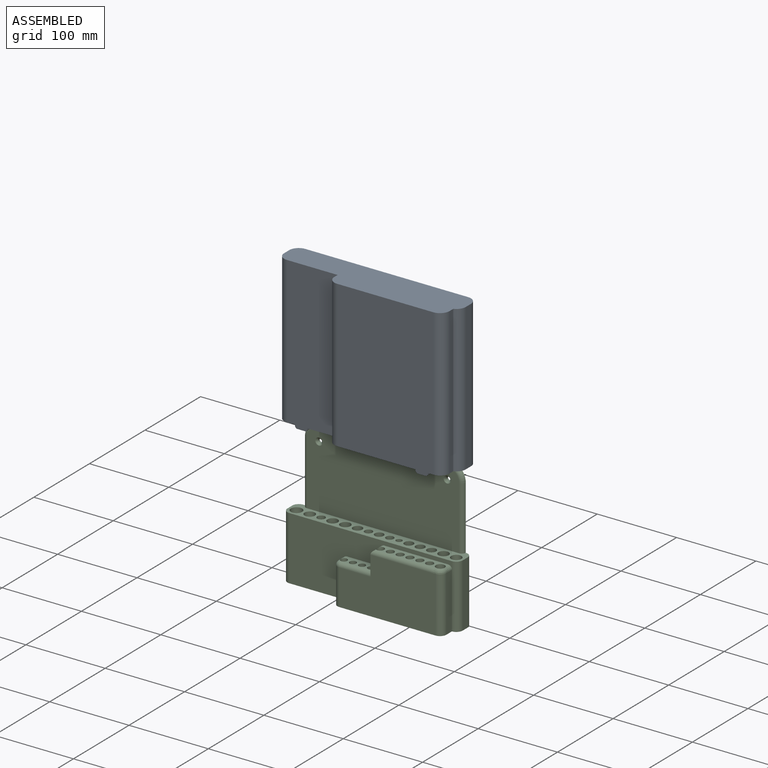
[diagram: assembled view]
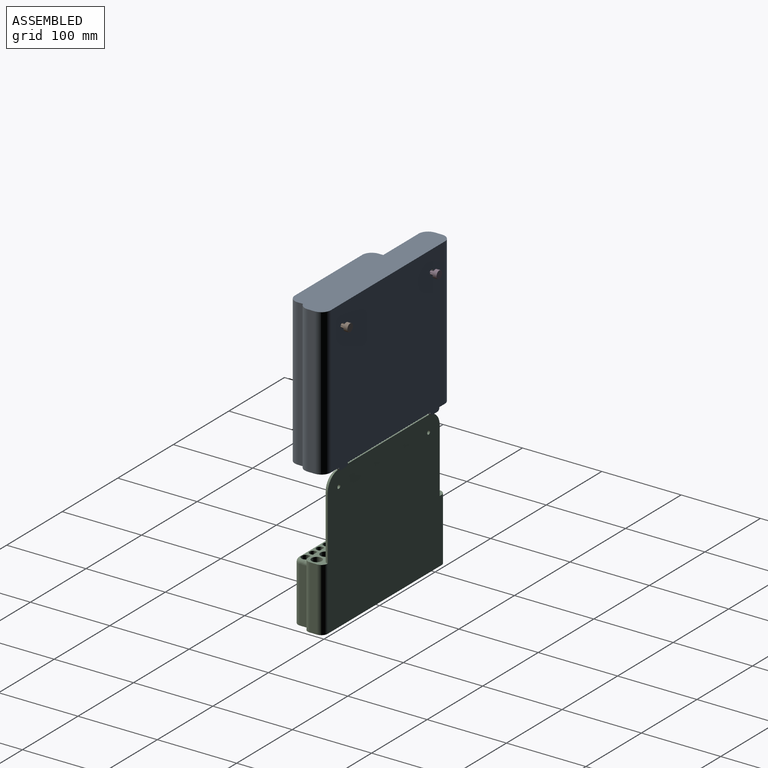
[diagram: assembled view, second angle]
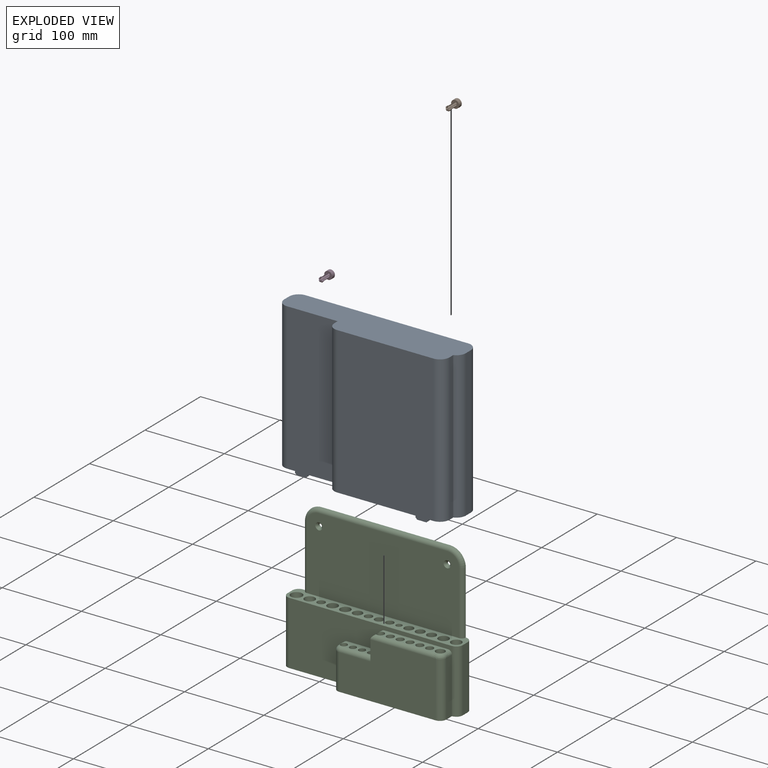
[diagram: exploded view]
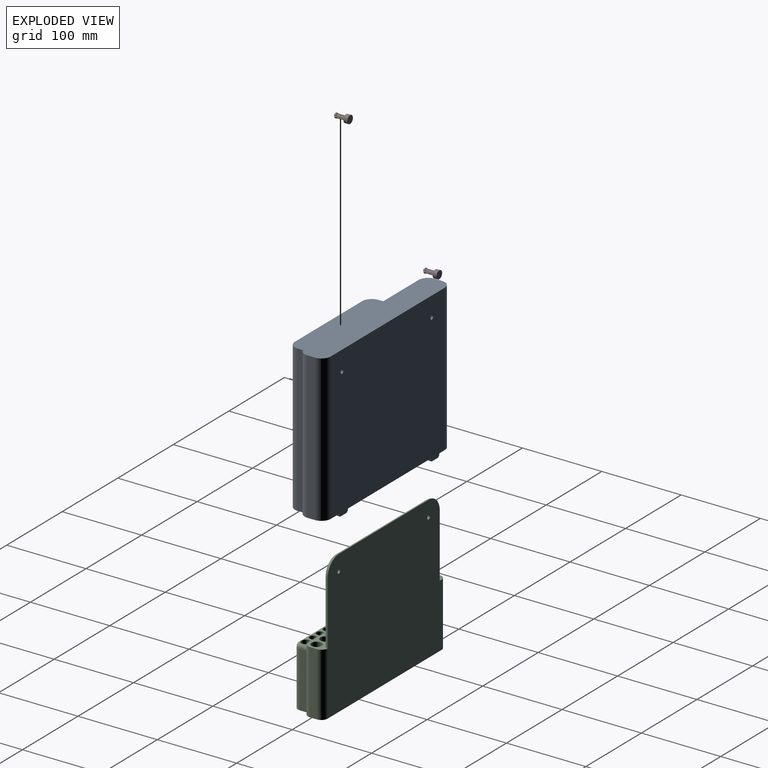
[diagram: exploded view, second angle]
ASSEMBLY  parts=4 mates=3
PART A: 138 faces, bbox 230.8x53x190.8 mm
  f0: plane 3x2mm, normal (-1,0,0), area 6mm2, adj f6,f16,f29,f127
  f1: plane 3x2mm, normal (-1,0,0), area 6mm2, adj f4,f9,f25,f131
  f2: plane 3x2mm, normal (1,0,0), area 6mm2, adj f6,f13,f21,f130
  f3: plane 148.87x3mm, normal (0,0,-1), area 446.6mm2, adj f9,f25,f113,f115
  f4: plane 33x22.02mm, normal (0,0,-1), area 186.1mm2, adj f1,f9,f10,f11,f12,f13,f21,f25
  f5: plane 51x26.82mm, normal (0,0,-1), area 256.3mm2, adj f7,f8,f9,f16,f17,f18,f19,f22
  f6: plane 148.87x21mm, normal (0,0,-1), area 487.1mm2, adj f0,f2,f13,f14,f15,f16,f21,f29
  f7: plane 185x9mm, normal (1,0,0), area 1665mm2, adj f5,f8,f19,f20
  f8: cylinder r=12mm len=185mm, axis (0,0,-1), area 3487.2mm2, adj f5,f7,f9,f20
  f9: plane 205x189mm, normal (0,1,0), area 38002.9mm2, adj f1,f3,f4,f5,f8,f10,f20,f107
  f10: cylinder r=12mm len=185mm, axis (0,0,-1), area 3487.2mm2, adj f4,f9,f11,f20
  f11: plane 185x9mm, normal (-1,0,0), area 1665mm2, adj f4,f10,f12,f20
  f12: cylinder r=12mm len=185mm, axis (0,0,-1), area 3487.2mm2, adj f4,f11,f13,f20
  f13: plane 189x63.75mm, normal (0,-1,0), area 11852.3mm2, adj f2,f4,f6,f12,f14,f20,f111,f112
  f14: plane 185x6mm, normal (-1,0,0), area 1110mm2, adj f6,f13,f15,f20
  f15: cylinder r=12mm len=185mm, axis (0,0,-1), area 3487.2mm2, adj f6,f14,f16,f20
  f16: plane 189x121.25mm, normal (0,-1,0), area 22489.8mm2, adj f0,f5,f6,f15,f17,f20,f109,f110
  f17: cylinder r=12mm len=185mm, axis (0,0,-1), area 3487.2mm2, adj f5,f16,f18,f20
  f18: plane 185x6.69mm, normal (1,0,0), area 1237mm2, adj f5,f17,f19,f20
  f19: cylinder r=12mm len=185mm, axis (0,0,-1), area 2732.7mm2, adj f5,f7,f18,f20
  f20: plane 229x51mm, normal (0,0,1), area 9987mm2, adj f7,f8,f9,f10,f11,f12,f13,f14
  f21: plane 205x83mm, normal (0,1,0), area 7326.2mm2, adj f2,f4,f6,f22,f28,f32,f34,f38
  f22: cylinder r=9mm len=81mm, axis (0,0,-1), area 1073.3mm2, adj f5,f21,f23,f31,f34,f49
  f23: plane 81x9mm, normal (-1,0,0), area 729mm2, adj f5,f22,f24,f34
  f24: cylinder r=9mm len=160mm, axis (0,0,-1), area 1215.4mm2, adj f5,f23,f25,f34,f50,f51
  f25: plane 205.92x182.92mm, normal (0,-1,0), area 36703.1mm2, adj f1,f3,f4,f5,f24,f26,f34,f51
  f26: cylinder r=9mm len=81mm, axis (0,0,-1), area 1145.1mm2, adj f4,f25,f27,f34
  f27: plane 81x9mm, normal (1,0,0), area 729mm2, adj f4,f26,f28,f34
  f28: cylinder r=9mm len=81mm, axis (0,0,-1), area 1145.1mm2, adj f4,f21,f27,f34
  f29: plane 121.25x72.16mm, normal (0,1,0), area 7566.7mm2, adj f0,f5,f6,f30,f33,f38,f41,f45
  f30: cylinder r=9mm len=70.32mm, axis (0,0,-1), area 992.9mm2, adj f5,f29,f31,f47
  f31: plane 70.42x9.06mm, normal (-1,0,0), area 635.3mm2, adj f5,f22,f30,f48,f49
  f32: plane 45x9mm, normal (1,0,0), area 405mm2, adj f6,f21,f33,f43
  f33: cylinder r=9mm len=45mm, axis (0,0,-1), area 636.2mm2, adj f6,f29,f32,f42
  f34: plane 223x27mm, normal (0,0,-1), area 3435.8mm2, adj f21,f22,f23,f24,f25,f26,f27,f28
  f35: plane 191.65x94mm, normal (0,1,0), area 17813.6mm2, adj f34,f36,f37,f50,f51,f52,f53,f54
  f36: cone r=1.79mm half-angle=45deg, axis (0,-1,0), area 3.1mm2, adj f35,f136
  f37: cone r=1.79mm half-angle=45deg, axis (0,-1,0), area 3.1mm2, adj f35,f134
  f38: plane 25x18mm, normal (1,0,0), area 349.7mm2, adj f21,f29,f40,f41,f44
  f39: plane 81.93x13.78mm, normal (0,0,-1), area 651.3mm2, adj f21,f44,f45,f46,f48,f49,f55,f57
  f40: plane 41.1x12mm, normal (0,0,-1), area 365.9mm2, adj f21,f38,f41,f42,f43,f59,f61,f63
  f41: cylinder r=6mm len=38.1mm, axis (-1,0,0), area 359.1mm2, adj f29,f38,f40,f42
  f42: torus R=3mm, axis (0,0,1), area 100.5mm2, adj f33,f40,f41,f43,f59
  f43: cylinder r=6mm len=9mm, axis (0,1,0), area 82mm2, adj f21,f32,f40,f42,f59
  f44: cylinder r=6mm len=18mm, axis (0,1,0), area 136mm2, adj f21,f38,f39,f45,f57
  f45: cylinder r=6mm len=78.99mm, axis (-1,0,0), area 716.2mm2, adj f29,f39,f44,f46
  f46: bspline ~6.48x6.02mm, area 36.5mm2, adj f29,f39,f45,f47,f55
  f47: bspline ~9x9mm, area 76.6mm2, adj f30,f46,f48,f55
  f48: bspline ~7.39x6.49mm, area 47.4mm2, adj f31,f39,f47,f49,f55
  f49: cylinder r=6mm len=6mm, axis (0,-1,0), area 31.4mm2, adj f21,f22,f31,f39,f48
  f50: cylinder r=6mm len=79mm, axis (0,0,1), area 820.1mm2, adj f24,f34,f35,f51
  f51: torus R=15mm, axis (0,1,0), area 311.9mm2, adj f24,f25,f35,f50,f52
  f52: cylinder r=6mm len=161.65mm, axis (-1,0,0), area 1685.9mm2, adj f25,f35,f51,f53
  f53: torus R=15mm, axis (0,1,0), area 311.7mm2, adj f25,f35,f52,f54
  f54: cylinder r=6mm len=79mm, axis (0,0,-1), area 823.9mm2, adj f25,f34,f35,f53
  f55: cylinder r=4.62mm len=105mm, axis (0,0,-1), area 3049.4mm2, adj f39,f46,f47,f48,f56
  f56: plane 9.25x9.25mm, normal (0,0,-1), area 67.2mm2, adj f55
  f57: cylinder r=3.7mm len=105mm, axis (0,0,-1), area 2441mm2, adj f39,f44,f58
  f58: plane 7.4x7.4mm, normal (0,0,-1), area 43mm2, adj f57
  f59: cylinder r=3.2mm len=130.04mm, axis (0,0,-1), area 2613.9mm2, adj f40,f42,f43,f60
  f60: plane 6.4x6.4mm, normal (0,0,-1), area 32.2mm2, adj f59
  f61: cylinder r=3.2mm len=130mm, axis (0,0,-1), area 2613.8mm2, adj f40,f62
  f62: plane 6.4x6.4mm, normal (0,0,-1), area 32.2mm2, adj f61
  f63: cylinder r=3.2mm len=130mm, axis (0,0,-1), area 2613.8mm2, adj f40,f64
  f64: plane 6.4x6.4mm, normal (0,0,-1), area 32.2mm2, adj f63
  f65: cylinder r=3.2mm len=130mm, axis (0,0,-1), area 2613.8mm2, adj f40,f66
  f66: plane 6.4x6.4mm, normal (0,0,-1), area 32.2mm2, adj f65
  f67: cylinder r=3.7mm len=105mm, axis (0,0,-1), area 2441mm2, adj f39,f68
  f68: plane 7.4x7.4mm, normal (0,0,-1), area 43mm2, adj f67
  f69: cylinder r=3.7mm len=105mm, axis (0,0,-1), area 2441mm2, adj f39,f70
  f70: plane 7.4x7.4mm, normal (0,0,-1), area 43mm2, adj f69
  f71: cylinder r=3.7mm len=105mm, axis (0,0,-1), area 2441mm2, adj f39,f72
  f72: plane 7.4x7.4mm, normal (0,0,-1), area 43mm2, adj f71
  f73: cylinder r=3.7mm len=105mm, axis (0,0,-1), area 2441mm2, adj f39,f74
  f74: plane 7.4x7.4mm, normal (0,0,-1), area 43mm2, adj f73
  f75: cylinder r=3.7mm len=105mm, axis (0,0,-1), area 2441mm2, adj f39,f76
  f76: plane 7.4x7.4mm, normal (0,0,-1), area 43mm2, adj f75
  f77: cylinder r=6.15mm len=100mm, axis (0,0,-1), area 3864.2mm2, adj f34,f78
  f78: plane 12.3x12.3mm, normal (0,0,-1), area 118.8mm2, adj f77
  f79: cylinder r=5.5mm len=100mm, axis (0,0,-1), area 3455.8mm2, adj f34,f80
  f80: plane 11x11mm, normal (0,0,-1), area 95mm2, adj f79
  f81: cylinder r=3.9mm len=100mm, axis (0,0,-1), area 2450.4mm2, adj f34,f82
  f82: plane 7.8x7.8mm, normal (0,0,-1), area 47.8mm2, adj f81
  f83: cylinder r=5.55mm len=100mm, axis (0,0,-1), area 3487.2mm2, adj f34,f84
  f84: plane 11.1x11.1mm, normal (0,0,-1), area 96.8mm2, adj f83
  f85: cylinder r=5.5mm len=100mm, axis (0,0,-1), area 3455.8mm2, adj f34,f86
  f86: plane 11x11mm, normal (0,0,-1), area 95mm2, adj f85
  f87: cylinder r=4.9mm len=100mm, axis (0,0,-1), area 3078.8mm2, adj f34,f88
  f88: plane 9.8x9.8mm, normal (0,0,-1), area 75.4mm2, adj f87
  f89: cylinder r=3.9mm len=100mm, axis (0,0,-1), area 2450.4mm2, adj f34,f90
  f90: plane 7.8x7.8mm, normal (0,0,-1), area 47.8mm2, adj f89
  f91: cylinder r=4.5mm len=100mm, axis (0,0,-1), area 2827.4mm2, adj f34,f92
  f92: plane 9x9mm, normal (0,0,-1), area 63.6mm2, adj f91
  f93: cylinder r=4.65mm len=100mm, axis (0,0,-1), area 2921.7mm2, adj f34,f94
  f94: plane 9.3x9.3mm, normal (0,0,-1), area 67.9mm2, adj f93
  f95: cylinder r=5.5mm len=100mm, axis (0,0,-1), area 3455.8mm2, adj f34,f96
  f96: plane 11x11mm, normal (0,0,-1), area 95mm2, adj f95
  f97: cylinder r=5.5mm len=100mm, axis (0,0,-1), area 3455.8mm2, adj f34,f98
  f98: plane 11x11mm, normal (0,0,-1), area 95mm2, adj f97
  f99: cylinder r=4.65mm len=100mm, axis (0,0,-1), area 2921.7mm2, adj f34,f100
  f100: plane 9.3x9.3mm, normal (0,0,-1), area 67.9mm2, adj f99
  f101: cylinder r=4.65mm len=100mm, axis (0,0,-1), area 2921.7mm2, adj f34,f102
  f102: plane 9.3x9.3mm, normal (0,0,-1), area 67.9mm2, adj f101
  f103: cylinder r=2.75mm len=100mm, axis (0,0,-1), area 1727.9mm2, adj f34,f104
  f104: plane 5.5x5.5mm, normal (0,0,-1), area 23.8mm2, adj f103
  f105: cylinder r=3.9mm len=100mm, axis (0,0,-1), area 2450.4mm2, adj f34,f106
  f106: plane 7.8x7.8mm, normal (0,0,-1), area 47.8mm2, adj f105
  f107: cylinder r=2.5mm len=5mm, axis (0,-1,0), area 47.1mm2, adj f9,f25
  f108: cylinder r=2.5mm len=5mm, axis (0,-1,0), area 47.1mm2, adj f9,f25
  f109: plane 3x2mm, normal (1,0,0), area 6mm2, adj f5,f16,f29,f125
  f110: plane 11.64x3mm, normal (0,0,-1), area 34.9mm2, adj f16,f125,f126,f127
  f111: plane 3x2mm, normal (-1,0,0), area 6mm2, adj f4,f13,f21,f128
  f112: plane 11.64x3mm, normal (0,0,-1), area 34.9mm2, adj f13,f128,f129,f130
  f113: plane 3x2mm, normal (1,0,0), area 6mm2, adj f3,f9,f25,f133
  f114: plane 11.64x3mm, normal (0,0,-1), area 34.9mm2, adj f9,f131,f132,f133
  f115: plane 3x2mm, normal (-1,0,0), area 6mm2, adj f3,f9,f25,f122
  f116: plane 3x2mm, normal (1,0,0), area 6mm2, adj f5,f9,f25,f124
  f117: plane 11.64x3mm, normal (0,0,-1), area 34.9mm2, adj f9,f122,f123,f124
  f118: plane 15.64x2mm, normal (0,0,1), area 31.3mm2, adj f25,f122,f123,f124
  f119: plane 15.64x2mm, normal (0,0,1), area 31.3mm2, adj f25,f131,f132,f133
  f120: plane 15.64x2mm, normal (0,0,1), area 31.3mm2, adj f21,f128,f129,f130
  f121: plane 15.64x2mm, normal (0,0,1), area 31.3mm2, adj f29,f125,f126,f127
  f122: plane 5x2mm, normal (-0.71,0,-0.71), area 11.3mm2, adj f9,f115,f117,f118,f123
  f123: plane 15.64x2mm, normal (0,-0.71,-0.71), area 38.6mm2, adj f117,f118,f122,f124
  f124: plane 5x2mm, normal (0.71,0,-0.71), area 11.3mm2, adj f9,f116,f117,f118,f123
  f125: plane 5x2mm, normal (0.71,0,-0.71), area 11.3mm2, adj f16,f109,f110,f121,f126
  f126: plane 15.64x2mm, normal (0,0.71,-0.71), area 38.6mm2, adj f110,f121,f125,f127
  f127: plane 5x2mm, normal (-0.71,0,-0.71), area 11.3mm2, adj f0,f16,f110,f121,f126
  f128: plane 5x2mm, normal (-0.71,0,-0.71), area 11.3mm2, adj f13,f111,f112,f120,f129
  f129: plane 15.64x2mm, normal (0,0.71,-0.71), area 38.6mm2, adj f112,f120,f128,f130
  f130: plane 5x2mm, normal (0.71,0,-0.71), area 11.3mm2, adj f2,f13,f112,f120,f129
  f131: plane 5x2mm, normal (-0.71,0,-0.71), area 11.3mm2, adj f1,f9,f114,f119,f132
  f132: plane 15.64x2mm, normal (0,-0.71,-0.71), area 38.6mm2, adj f114,f119,f131,f133
  f133: plane 5x2mm, normal (0.71,0,-0.71), area 11.3mm2, adj f9,f113,f114,f119,f132
  f134: cylinder r=4mm len=8mm, axis (0,-1,0), area 52.4mm2, adj f37,f135
  f135: plane 8x8mm, normal (0,1,0), area 50.3mm2, adj f134
  f136: cylinder r=4mm len=8mm, axis (0,-1,0), area 52.4mm2, adj f36,f137
  f137: plane 8x8mm, normal (0,1,0), area 50.3mm2, adj f136
PART B: 31 faces, bbox 10x10x20 mm
  f0: cylinder r=3mm len=2.22mm, axis (0,0,-1), area 4.9mm2, adj f15,f16,f25,f27
  f1: cylinder r=3mm len=2.22mm, axis (0,0,-1), area 4.9mm2, adj f17,f18,f24,f28
  f2: cylinder r=3mm len=2.22mm, axis (0,0,-1), area 4.9mm2, adj f19,f20,f23,f30
  f3: cylinder r=2.5mm len=11mm, axis (0,0,1), area 27.6mm2, adj f10,f15,f16,f27
  f4: cylinder r=2.5mm len=11mm, axis (0,0,1), area 27.6mm2, adj f10,f19,f20,f30
  f5: cylinder r=2.5mm len=11mm, axis (0,0,1), area 27.6mm2, adj f10,f21,f22,f29
  f6: plane 0.01x0.01mm, normal (0,0,1), area 0mm2, adj f15,f16,f25
  f7: plane 0.01x0.01mm, normal (0,0,1), area 0mm2, adj f19,f20,f23
  f8: plane 0.01x0.01mm, normal (0,0,1), area 0mm2, adj f21,f22,f26
  f9: cylinder r=5mm len=10mm, axis (0,0,-1), area 157.1mm2, adj f10,f11
  f10: plane 10x10mm, normal (0,0,1), area 70.8mm2, adj f3,f4,f5,f9,f12,f15,f16,f17
  f11: plane 10x10mm, normal (0,0,-1), area 78.5mm2, adj f9
  f12: cylinder r=2.5mm len=11mm, axis (0,0,1), area 27.6mm2, adj f10,f17,f18,f28
  f13: plane 0.01x0.01mm, normal (0,0,1), area 0mm2, adj f17,f18,f24
  f14: cylinder r=3mm len=2.22mm, axis (0,0,-1), area 4.9mm2, adj f21,f22,f26,f29
  f15: plane 15.01x2.23mm, normal (1,0,0), area 25.3mm2, adj f0,f3,f6,f10,f16,f25,f27
  f16: plane 15.01x2.23mm, normal (0,-1,0), area 25.3mm2, adj f0,f3,f6,f10,f15,f25,f27
  f17: plane 15.01x2.23mm, normal (0,1,0), area 25.3mm2, adj f1,f10,f12,f13,f18,f24,f28
  f18: plane 15.01x2.23mm, normal (1,0,0), area 25.3mm2, adj f1,f10,f12,f13,f17,f24,f28
  f19: plane 15.01x2.23mm, normal (-1,0,0), area 25.3mm2, adj f2,f4,f7,f10,f20,f23,f30
  f20: plane 15.01x2.23mm, normal (0,1,0), area 25.3mm2, adj f2,f4,f7,f10,f19,f23,f30
  f21: plane 15.01x2.23mm, normal (0,-1,0), area 25.3mm2, adj f5,f8,f10,f14,f22,f26,f29
  f22: plane 15.01x2.23mm, normal (-1,0,0), area 25.3mm2, adj f5,f8,f10,f14,f21,f26,f29
  f23: cone r=1mm half-angle=45deg, axis (0,0,-1), area 4.8mm2, adj f2,f7,f19,f20
  f24: cone r=1mm half-angle=45deg, axis (0,0,-1), area 4.8mm2, adj f1,f13,f17,f18
  f25: cone r=1mm half-angle=45deg, axis (0,0,-1), area 4.8mm2, adj f0,f6,f15,f16
  f26: cone r=1mm half-angle=45deg, axis (0,0,-1), area 4.8mm2, adj f8,f14,f21,f22
  f27: cone r=3mm half-angle=45deg, axis (0,0,1), area 2mm2, adj f0,f3,f15,f16
  f28: cone r=3mm half-angle=45deg, axis (0,0,1), area 2mm2, adj f1,f12,f17,f18
  f29: cone r=3mm half-angle=45deg, axis (0,0,1), area 2mm2, adj f5,f14,f21,f22
  f30: cone r=3mm half-angle=45deg, axis (0,0,1), area 2mm2, adj f2,f4,f19,f20
PART C: 89 faces, bbox 221x46.6x181.6 mm
  f0: plane 205x80mm, normal (0,-1,0), area 7299.8mm2, adj f1,f2,f23,f24,f52,f63,f68,f74
  f1: plane 221x25mm, normal (0,0,1), area 2870.5mm2, adj f0,f2,f3,f4,f5,f6,f7,f8
  f2: cylinder r=8mm len=80mm, axis (0,0,-1), area 1005.3mm2, adj f0,f1,f3,f24,f55
  f3: plane 80x9mm, normal (1,0,0), area 720mm2, adj f1,f2,f4,f24
  f4: cylinder r=8mm len=80mm, axis (0,0,-1), area 1005.3mm2, adj f1,f3,f5,f24
  f5: plane 205x180mm, normal (0,1,0), area 36354mm2, adj f1,f4,f6,f24,f41,f42,f84,f85
  f6: cylinder r=8mm len=80mm, axis (0,0,-1), area 1005.3mm2, adj f1,f5,f7,f24
  f7: plane 80x9mm, normal (-1,0,0), area 720mm2, adj f1,f6,f23,f24
  f8: cylinder r=7.15mm len=75mm, axis (0,0,-1), area 3369.4mm2, adj f1,f39
  f9: cylinder r=6.5mm len=75mm, axis (0,0,-1), area 3063.1mm2, adj f1,f38
  f10: cylinder r=4.9mm len=75mm, axis (0,0,-1), area 2309.1mm2, adj f1,f37
  f11: cylinder r=6.55mm len=75mm, axis (0,0,-1), area 3086.6mm2, adj f1,f36
  f12: cylinder r=6.5mm len=75mm, axis (0,0,-1), area 3063.1mm2, adj f1,f35
  f13: cylinder r=5.9mm len=75mm, axis (0,0,-1), area 2780.3mm2, adj f1,f34
  f14: cylinder r=4.9mm len=75mm, axis (0,0,-1), area 2309.1mm2, adj f1,f33
  f15: cylinder r=5.5mm len=75mm, axis (0,0,-1), area 2591.8mm2, adj f1,f32
  f16: cylinder r=4.9mm len=75mm, axis (0,0,-1), area 2309.1mm2, adj f1,f31
  f17: cylinder r=3.75mm len=75mm, axis (0,0,-1), area 1767.1mm2, adj f1,f30
  f18: cylinder r=5.65mm len=75mm, axis (0,0,-1), area 2662.5mm2, adj f1,f29
  f19: cylinder r=5.65mm len=75mm, axis (0,0,-1), area 2662.5mm2, adj f1,f28
  f20: cylinder r=5.65mm len=75mm, axis (0,0,-1), area 2662.5mm2, adj f1,f27
  f21: cylinder r=6.5mm len=75mm, axis (0,0,-1), area 3063.1mm2, adj f1,f26
  f22: cylinder r=6.5mm len=75mm, axis (0,0,-1), area 3063.1mm2, adj f1,f25
  f23: cylinder r=8mm len=80mm, axis (0,0,-1), area 1005.3mm2, adj f0,f1,f7,f24
  f24: plane 221x43mm, normal (0,0,-1), area 7913.1mm2, adj f0,f2,f3,f4,f5,f6,f7,f23
  f25: plane 13x13mm, normal (0,0,1), area 132.7mm2, adj f22
  f26: plane 13x13mm, normal (0,0,1), area 132.7mm2, adj f21
  f27: plane 11.3x11.3mm, normal (0,0,1), area 100.3mm2, adj f20
  f28: plane 11.3x11.3mm, normal (0,0,1), area 100.3mm2, adj f19
  f29: plane 11.3x11.3mm, normal (0,0,1), area 100.3mm2, adj f18
  f30: plane 7.5x7.5mm, normal (0,0,1), area 44.2mm2, adj f17
  f31: plane 9.8x9.8mm, normal (0,0,1), area 75.4mm2, adj f16
  f32: plane 11x11mm, normal (0,0,1), area 95mm2, adj f15
  f33: plane 9.8x9.8mm, normal (0,0,1), area 75.4mm2, adj f14
  f34: plane 11.8x11.8mm, normal (0,0,1), area 109.4mm2, adj f13
  f35: plane 13x13mm, normal (0,0,1), area 132.7mm2, adj f12
  f36: plane 13.1x13.1mm, normal (0,0,1), area 134.8mm2, adj f11
  f37: plane 9.8x9.8mm, normal (0,0,1), area 75.4mm2, adj f10
  f38: plane 13x13mm, normal (0,0,1), area 132.7mm2, adj f9
  f39: plane 14.3x14.3mm, normal (0,0,1), area 160.6mm2, adj f8
  f40: plane 191.65x95mm, normal (0,-1,0), area 17982.9mm2, adj f1,f43,f44,f84,f85,f86,f87,f88
  f41: cylinder r=2.5mm len=5mm, axis (0,-1,0), area 47.1mm2, adj f5,f43
  f42: cylinder r=2.5mm len=5mm, axis (0,-1,0), area 47.1mm2, adj f5,f44
  f43: cone r=2.5mm half-angle=45deg, axis (0,-1,0), area 62.2mm2, adj f40,f41
  f44: cone r=2.5mm half-angle=45deg, axis (0,-1,0), area 62.2mm2, adj f40,f42
  f45: plane 11.25x11.25mm, normal (0,0,1), area 99.4mm2, adj f62
  f46: plane 9.4x9.4mm, normal (0,0,1), area 69.4mm2, adj f61
  f47: plane 9.4x9.4mm, normal (0,0,1), area 69.4mm2, adj f60
  f48: plane 9.4x9.4mm, normal (0,0,1), area 69.4mm2, adj f59
  f49: plane 9.4x9.4mm, normal (0,0,1), area 69.4mm2, adj f58
  f50: plane 9.4x9.4mm, normal (0,0,1), area 69.4mm2, adj f57
  f51: plane 9.4x9.4mm, normal (0,0,1), area 69.4mm2, adj f56
  f52: plane 25x18mm, normal (-1,0,0), area 365.4mm2, adj f0,f53,f74,f75,f78
  f53: plane 121.25x70.16mm, normal (0,-1,0), area 7510.4mm2, adj f24,f52,f54,f69,f75,f79,f80
  f54: cylinder r=8mm len=70.32mm, axis (0,0,-1), area 882.6mm2, adj f24,f53,f55,f81
  f55: plane 70.42x10mm, normal (1,0,0), area 701.4mm2, adj f2,f24,f54,f82,f83
  f56: cylinder r=4.7mm len=70mm, axis (0,0,-1), area 2058.5mm2, adj f51,f63,f78,f79
  f57: cylinder r=4.7mm len=70mm, axis (0,0,-1), area 2067.2mm2, adj f50,f63,f79
  f58: cylinder r=4.7mm len=70mm, axis (0,0,-1), area 2067.2mm2, adj f49,f63,f79
  f59: cylinder r=4.7mm len=70mm, axis (0,0,-1), area 2067.2mm2, adj f48,f63,f79
  f60: cylinder r=4.7mm len=70mm, axis (0,0,-1), area 2067.2mm2, adj f47,f63,f79
  f61: cylinder r=4.7mm len=70mm, axis (0,0,-1), area 2067.2mm2, adj f46,f63,f79
  f62: cylinder r=5.62mm len=70mm, axis (0,0,-1), area 2474mm2, adj f45,f63,f80,f81,f82
  f63: plane 80.15x13mm, normal (0,0,1), area 572.1mm2, adj f0,f56,f57,f58,f59,f60,f61,f62
  f64: plane 8.4x8.4mm, normal (0,0,1), area 55.4mm2, adj f73
  f65: plane 8.4x8.4mm, normal (0,0,1), area 55.4mm2, adj f72
  f66: plane 8.4x8.4mm, normal (0,0,1), area 55.4mm2, adj f71
  f67: plane 8.4x8.4mm, normal (0,0,1), area 55.4mm2, adj f70
  f68: plane 45x10mm, normal (-1,0,0), area 450mm2, adj f0,f24,f69,f77
  f69: cylinder r=8mm len=45mm, axis (0,0,-1), area 565.5mm2, adj f24,f53,f68,f76
  f70: cylinder r=4.2mm len=45mm, axis (0,0,-1), area 1185.8mm2, adj f67,f74,f76,f77
  f71: cylinder r=4.2mm len=45mm, axis (0,0,-1), area 1187.5mm2, adj f66,f74
  f72: cylinder r=4.2mm len=45mm, axis (0,0,-1), area 1187.5mm2, adj f65,f74
  f73: cylinder r=4.2mm len=45mm, axis (0,0,-1), area 1187.5mm2, adj f64,f74
  f74: plane 42.1x13mm, normal (0,0,1), area 334.9mm2, adj f0,f52,f70,f71,f72,f73,f75,f76
  f75: cylinder r=5mm len=39.1mm, axis (-1,0,0), area 307.1mm2, adj f52,f53,f74,f76
  f76: torus R=3mm, axis (0,0,1), area 72.3mm2, adj f69,f70,f74,f75,f77
  f77: cylinder r=5mm len=10mm, axis (0,1,0), area 70.7mm2, adj f0,f68,f70,f74,f76
  f78: cylinder r=5mm len=18mm, axis (0,1,0), area 101.8mm2, adj f0,f52,f56,f63,f79
  f79: cylinder r=5mm len=77.99mm, axis (-1,0,0), area 593.8mm2, adj f53,f56,f57,f58,f59,f60,f61,f63
  f80: bspline ~5.36x5.2mm, area 29.5mm2, adj f53,f62,f79,f81
  f81: bspline ~8x8mm, area 65.9mm2, adj f54,f62,f80,f82
  f82: bspline ~7.21x5.18mm, area 38.1mm2, adj f55,f62,f81,f83
  f83: cylinder r=5mm len=5mm, axis (0,-1,0), area 34mm2, adj f0,f55,f63,f82
  f84: cylinder r=5mm len=80mm, axis (0,0,1), area 628.3mm2, adj f1,f5,f40,f85
  f85: torus R=15mm, axis (0,1,0), area 224.3mm2, adj f5,f40,f84,f86
  f86: cylinder r=5mm len=161.65mm, axis (-1,0,0), area 1269.6mm2, adj f5,f40,f85,f87
  f87: torus R=15mm, axis (0,1,0), area 224.3mm2, adj f5,f40,f86,f88
  f88: cylinder r=5mm len=80mm, axis (0,0,-1), area 628.3mm2, adj f1,f5,f40,f87
PART D: same geometry as B
PLACE A t=(4.56,7.78,205.09)mm
PLACE B rot(axis=(1,0,0),90deg) t=(-92.46,37,309.49)mm
PLACE C t=(4.56,7.78,20.32)mm
PLACE D rot(axis=(0,-0.71,0.71),180deg) t=(29.42,37.29,420)mm
MATE slider A.f5 <-> C.f24  axis (0,0,1) through (68.53,23.78,205.09)mm
MATE slider A.f36 <-> B.f0  axis (0,1,0) through (48.53,26.78,365.09)mm
MATE slider A.f37 <-> D.f10  axis (0,1,0) through (-113.12,14.78,365.09)mm
